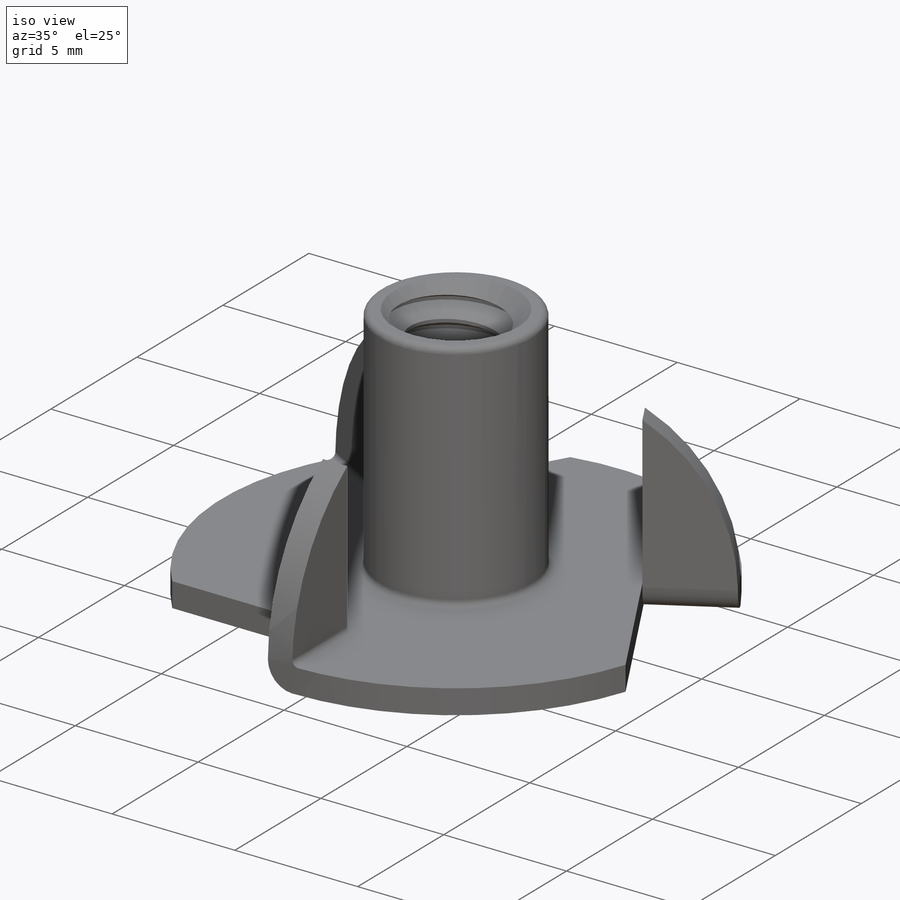
[diagram: iso view]
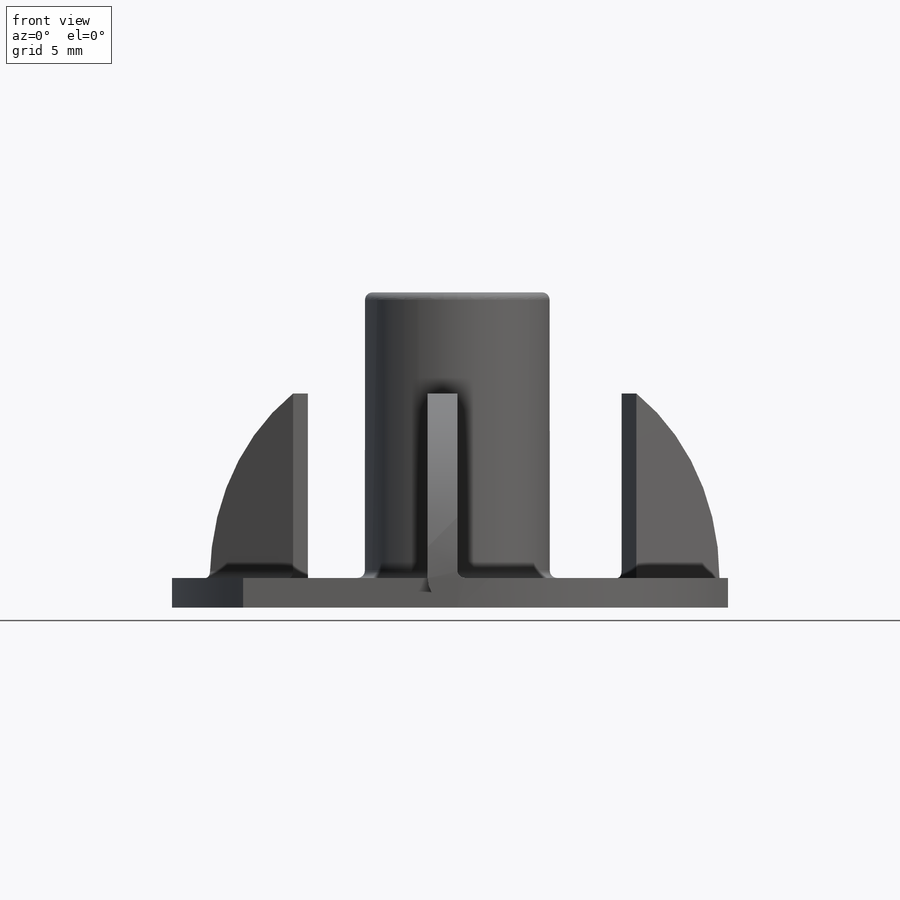
[diagram: front view]
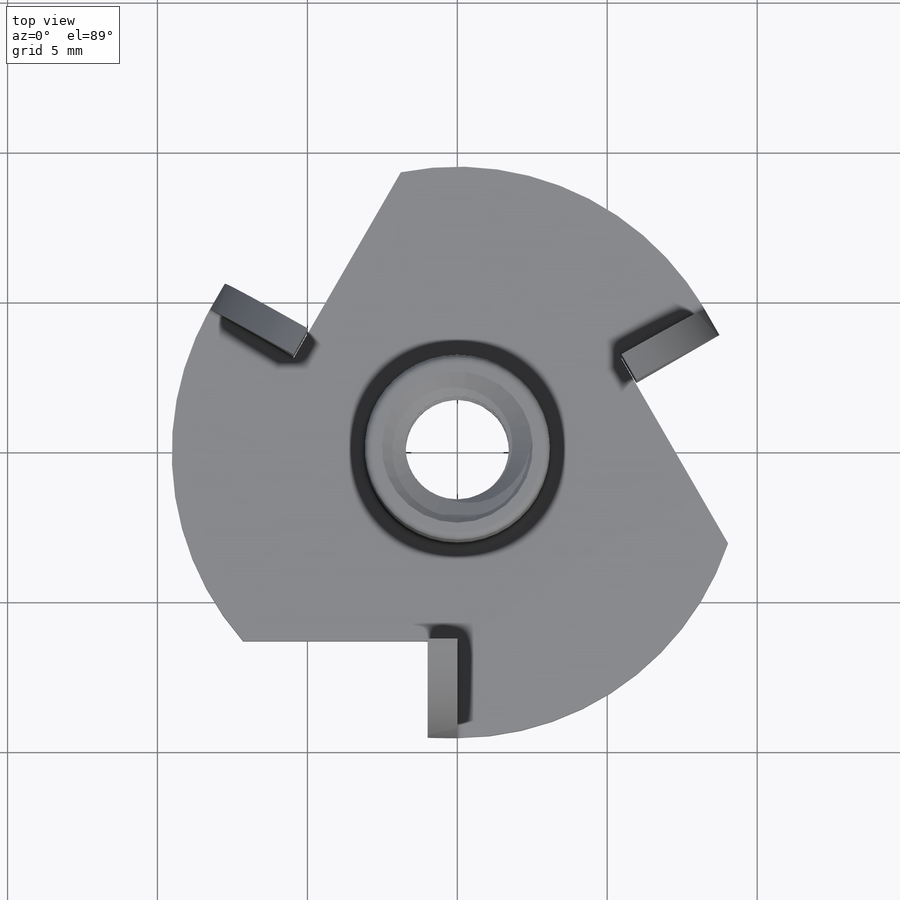
[diagram: top view]
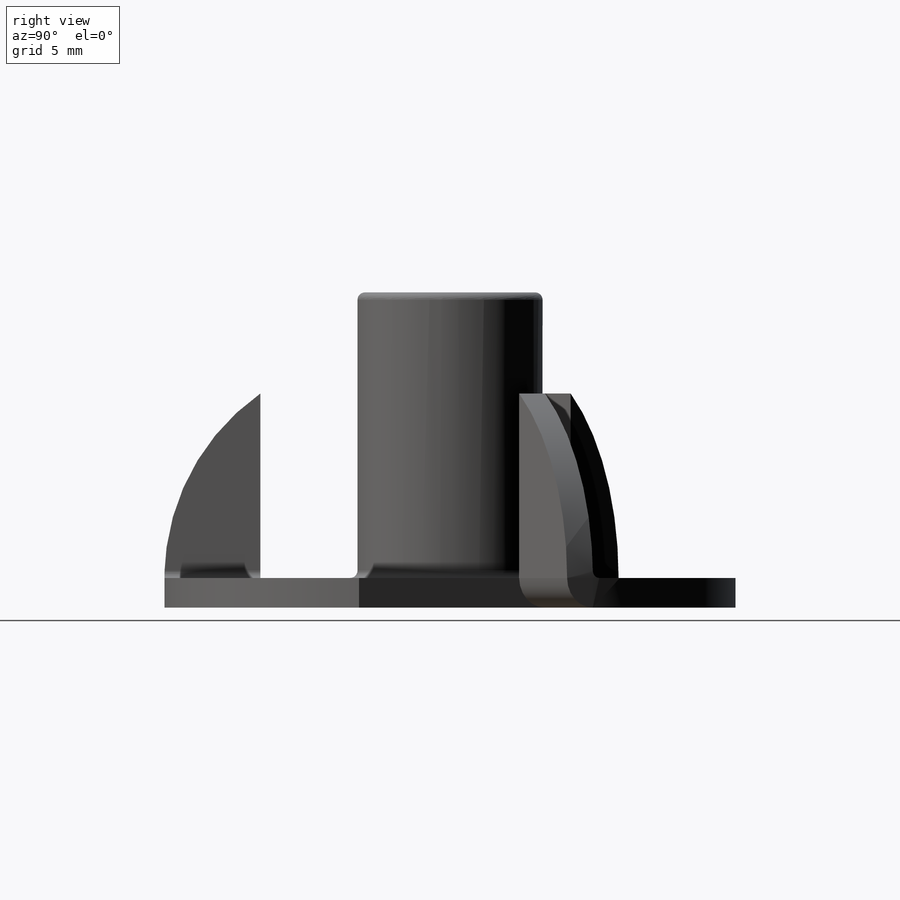
[diagram: right view]
SOLIDWORKS PART (.sldprt)
format: sldprt  version: not decoded by parser v0  size: 568,832 bytes
history: native  units: mm
features: sketch x12, cut_extrude x4, extrude x3, fillet x3, pattern_circular x2, material x1, revolve x1, helix x1, chamfer x1, sweep x1 (+13 scaffold rows collapsed)
feature tree (42):
  scaffold x13  (default folders/planes/origin — collapsed)
  material  "Material <not specified>"
  sketch  "Sketch1"  dims[c1.C=6.1722mm c1.C1=8.636mm c1.Thread OD=4.826mm c1.D1=4.826mm c1.A=19.05mm c2.A=19.05mm c2.A1=~17.859375mm c2.D1=7.9375mm c2.D2=7.9375mm c3.D1=7.9375mm c3.F=8.509mm c4.D1=1.143mm]
  sketch  "Sketch2"  dims[T=0.9906mm B=9.525mm D=~7.14375mm D1=~5.55625mm]
  sketch  "Sketch3"  dims[c1.D1=0.4953mm c1.D2=2.9845mm c1.D3=~5.335628mm c2.D3=60.0deg c2.D4=~6.357146mm c2.D1=4.7625mm c2.D5=~17.859375mm c3.D1=2.9845mm c3.D2=2.9845mm c3.D3=2.9845mm c3.D4=2.9845mm c4.D3=2.9845mm c4.D4=2.9845mm c5.D3=2.9845mm c5.D4=2.9845mm c6.D3=2.9845mm c6.D4=2.9845mm c6.D1=2.3876mm c6.D2=90.0deg c7.D3=7.1374mm c7.D1=6.35mm]
  extrude  "Extrude1"  [1 undecoded]
  sketch  "Sketch4"  dims[D1=~7.14375mm D2=~2.425484mm]
  cut_extrude  "Extrude2"  [1 undecoded]
  pattern_circular  "CirPattern1"  Count=3 Angle=360deg
  sketch  "Sketch5"  dims[c1.D1=0.0254mm c1.D2=~1.061838mm c2.D2=15.0deg c2.D3=~5.234004mm c2.D1=6.35mm c3.D1=90.0deg c4.D1=0.0254mm c4.D2=0.0254mm c4.D3=90.0deg c5.D3=0.0254mm c5.D4=90.0deg c5.D2=~0.160862mm c5.D1=0.0254mm]
  revolve  "Revolve1"  Angle=90deg
  sketch  "Sketch6"
  extrude  "Extrude3"  [1 undecoded]
  pattern_circular  "CirPattern2"  Count=3 Angle=360deg
  sketch  "Sketch7"
  extrude  "Extrude4"  [1 undecoded]
  sketch  "Sketch8"
  cut_extrude  "Extrude5"  [1 undecoded]
  sketch  "Sketch9"
  cut_extrude  "Extrude6"  [1 undecoded]
  fillet  "Fillet1"  Radius=0.9906mm
  fillet  "Fillet2"  Radius=0.24765mm
  fillet  "Fillet3"  Radius=0.24765mm
  sketch  "Sketch10"
  helix  "Helix/Spiral1"  Pitch=11.573933mm Height=11.573933mm
  sketch  "Sketch11"  dims[D1=~1.058333mm D2=~0.132292mm]
  sketch  "Sketch12"
  cut_extrude  "Extrude7"  [1 undecoded]
  chamfer  "Chamfer1"  Distance=0.79375mm Angle=45deg
  sweep  "Cut-Sweep1"
decode coverage: 14 of 28 modeling features carry decoded parameters
note: ~ marks probable driven/reference dimensions
note: 7 parameter values undecoded
summary: no parameter record found for 7 features
note: suppression state not decoded; provenance and decode notes live in map.json
